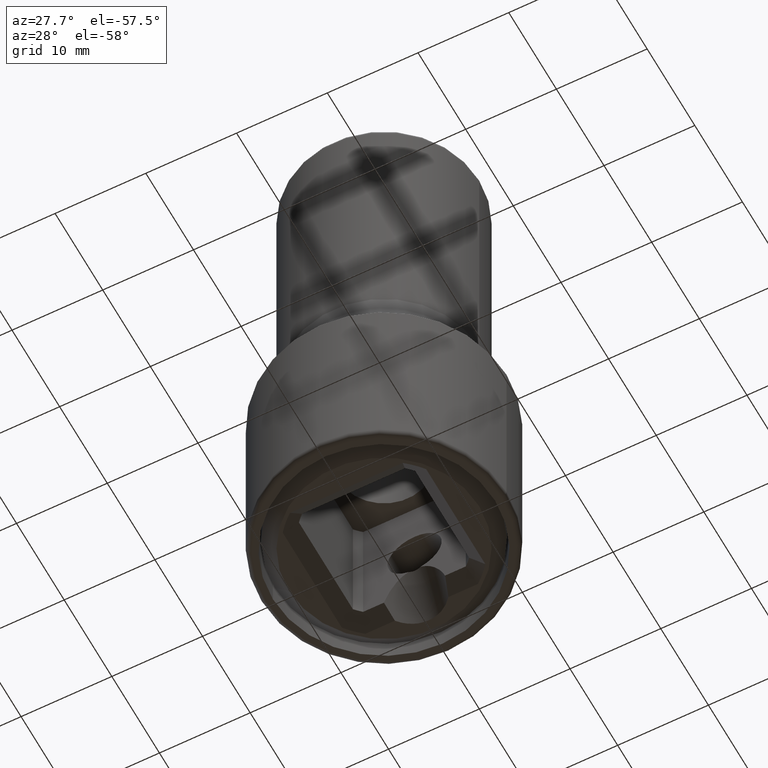
[diagram: clean part render]
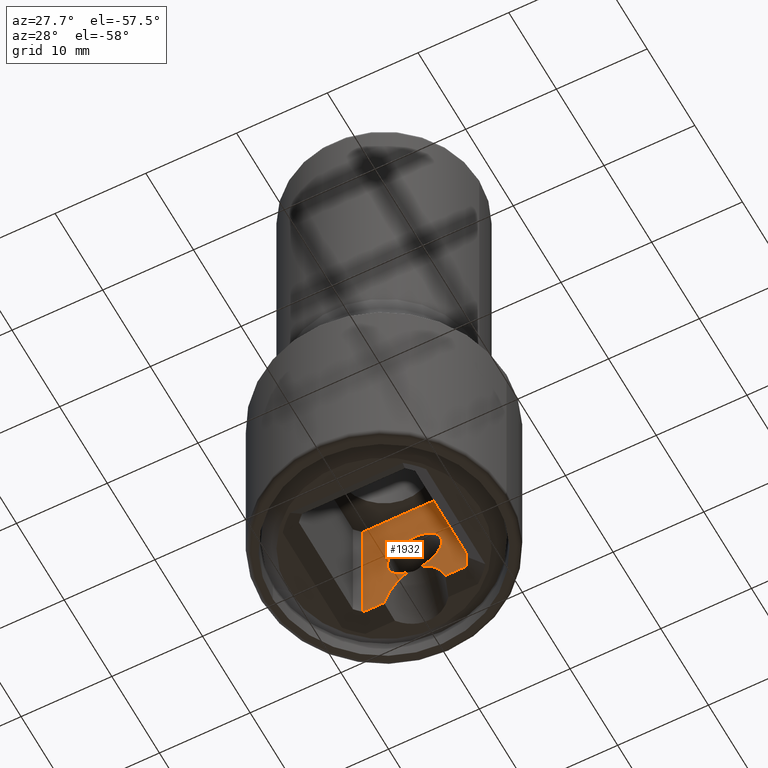
[diagram: same view with one face highlighted and labeled with its STEP entity id]
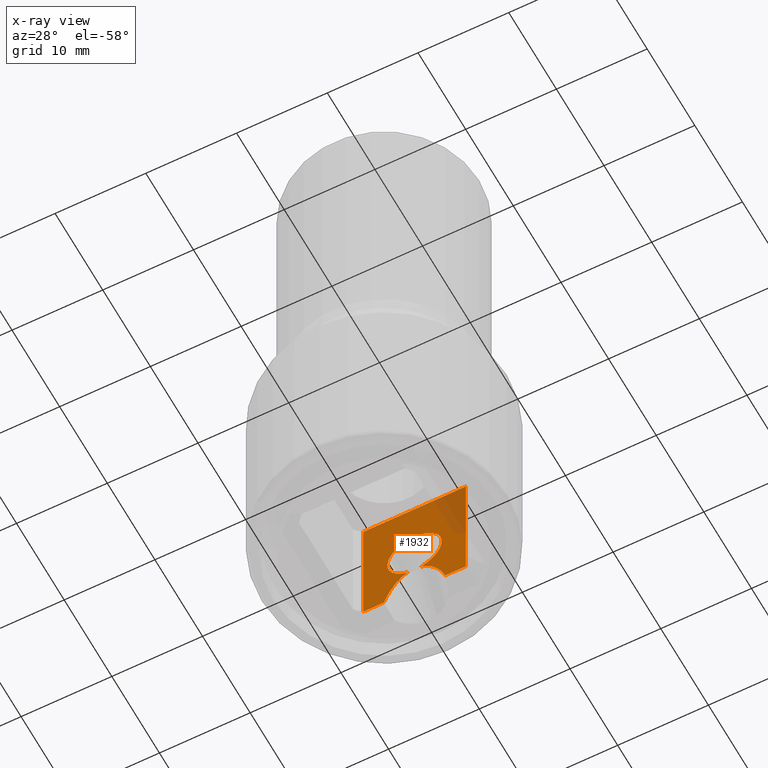
[diagram: x-ray of the same camera — body ghosted, the highlighted face saturated]
A machine part, auxiliary view. The second image highlights one B-rep face of the part: STEP entity #1932.
The next image is the same camera in x-ray: the body ghosted, the highlighted face saturated — about 16% of this face is hidden behind the body in this view.
In plain terms, the highlighted planar face has unit normal (0, 1, 0).
Its self-contained STEP definition (entity closure, byte-faithful):
#105=CARTESIAN_POINT('',(6.828016345722E-1,6.405E0,5.078736244735E0));
#106=CARTESIAN_POINT('',(1.073727708636E0,6.405E0,4.943285753681E0));
#107=CARTESIAN_POINT('',(1.692973821892E0,6.405E0,4.513738629968E0));
#108=CARTESIAN_POINT('',(2.638655239486E0,6.405E0,3.368964302522E0));
#109=CARTESIAN_POINT('',(3.120281286575E0,6.405E0,2.288292064284E0));
#110=CARTESIAN_POINT('',(3.371827992033E0,6.405E0,1.5E0));
#122=CARTESIAN_POINT('',(-3.371827992033E0,6.405E0,1.5E0));
#123=CARTESIAN_POINT('',(-3.120281286575E0,6.405E0,2.288292064284E0));
#124=CARTESIAN_POINT('',(-2.638655239486E0,6.405E0,3.368964302522E0));
#125=CARTESIAN_POINT('',(-1.692973821892E0,6.405E0,4.513738629968E0));
#126=CARTESIAN_POINT('',(-1.073727708636E0,6.405E0,4.943285753681E0));
#127=CARTESIAN_POINT('',(-6.828016345722E-1,6.405E0,5.078736244735E0));
#682=DIRECTION('',(1.E0,0.E0,0.E0));
#683=VECTOR('',#682,1.132757255549E1);
#684=CARTESIAN_POINT('',(-5.663786277747E0,6.405E0,1.6E1));
#685=LINE('',#684,#683);
#728=DIRECTION('',(7.952565808959E-13,1.974818775944E-12,1.E0));
#729=VECTOR('',#728,1.449999999997E1);
#730=CARTESIAN_POINT('',(5.663786277736E0,6.404999999971E0,1.500000000029E0));
#731=LINE('',#730,#729);
#838=CARTESIAN_POINT('',(3.371827992033E0,6.405E0,1.5E0));
#840=CARTESIAN_POINT('',(-3.371827992033E0,6.405E0,1.5E0));
#851=CARTESIAN_POINT('',(0.E0,6.405E0,8.E0));
#852=DIRECTION('',(0.E0,1.E0,0.E0));
#853=DIRECTION('',(-2.276005448574E-1,0.E0,-9.737545850884E-1));
#854=AXIS2_PLACEMENT_3D('',#851,#852,#853);
#856=DIRECTION('',(-9.999999999999E-1,-2.506639894632E-7,2.546262161210E-7));
#857=VECTOR('',#856,2.291958054426E0);
#858=CARTESIAN_POINT('',(-3.371827992033E0,6.405E0,1.5E0));
#859=LINE('',#858,#857);
#860=DIRECTION('',(-1.595096839170E-8,3.962147391996E-8,1.E0));
#861=VECTOR('',#860,1.449999941641E1);
#862=CARTESIAN_POINT('',(-5.663786046458E0,6.404999425489E0,1.500000583593E0));
#863=LINE('',#862,#861);
#864=DIRECTION('',(-1.E0,1.249362714398E-11,-1.269271526263E-11));
#865=VECTOR('',#864,2.291958285703E0);
#866=CARTESIAN_POINT('',(5.663786277736E0,6.404999999971E0,1.500000000029E0));
#867=LINE('',#866,#865);
#868=CARTESIAN_POINT('',(0.E0,6.405E0,8.E0));
#869=DIRECTION('',(0.E0,1.E0,0.E0));
#870=DIRECTION('',(0.E0,0.E0,1.E0));
#871=AXIS2_PLACEMENT_3D('',#868,#869,#870);
#905=CARTESIAN_POINT('',(5.663786277747E0,6.405E0,1.6E1));
#907=VERTEX_POINT('',#905);
#919=CARTESIAN_POINT('',(-5.663786277747E0,6.405E0,1.6E1));
#920=VERTEX_POINT('',#919);
#922=CARTESIAN_POINT('',(5.663786277747E0,6.405E0,1.5E0));
#924=VERTEX_POINT('',#922);
#951=CARTESIAN_POINT('',(-5.663786277747E0,6.405E0,1.5E0));
#952=VERTEX_POINT('',#951);
#954=VERTEX_POINT('',#838);
#955=VERTEX_POINT('',#840);
#981=CARTESIAN_POINT('',(-6.828016345722E-1,6.405E0,5.078736244735E0));
#982=CARTESIAN_POINT('',(0.E0,6.405E0,1.1E1));
#983=VERTEX_POINT('',#981);
#984=VERTEX_POINT('',#982);
#985=CARTESIAN_POINT('',(6.828016345722E-1,6.405E0,5.078736244735E0));
#986=VERTEX_POINT('',#985);
#1916=CARTESIAN_POINT('',(-5.663786277747E0,6.405E0,0.E0));
#1917=DIRECTION('',(0.E0,1.E0,0.E0));
#1918=DIRECTION('',(1.E0,0.E0,0.E0));
#1919=AXIS2_PLACEMENT_3D('',#1916,#1917,#1918);
#1920=PLANE('',#1919);
#1921=ORIENTED_EDGE('',*,*,#1142,.F.);
#1922=ORIENTED_EDGE('',*,*,#1123,.F.);
#1923=ORIENTED_EDGE('',*,*,#1911,.T.);
#1924=ORIENTED_EDGE('',*,*,#1872,.T.);
#1925=ORIENTED_EDGE('',*,*,#1673,.T.);
#1926=ORIENTED_EDGE('',*,*,#1702,.F.);
#1927=ORIENTED_EDGE('',*,*,#1896,.T.);
#1928=ORIENTED_EDGE('',*,*,#1116,.F.);
#1929=ORIENTED_EDGE('',*,*,#1223,.F.);
#1930=EDGE_LOOP('',(#1921,#1922,#1923,#1924,#1925,#1926,#1927,#1928,#1929));
#1931=FACE_OUTER_BOUND('',#1930,.F.);
#1932=ADVANCED_FACE('',(#1931),#1920,.F.);
#111=B_SPLINE_CURVE_WITH_KNOTS('',3,(#105,#106,#107,#108,#109,#110),
.UNSPECIFIED.,.F.,.F.,(4,1,1,4),(0.E0,2.5E-1,5.E-1,1.E0),.UNSPECIFIED.);
#128=B_SPLINE_CURVE_WITH_KNOTS('',3,(#122,#123,#124,#125,#126,#127),
.UNSPECIFIED.,.F.,.F.,(4,1,1,4),(0.E0,5.E-1,7.5E-1,1.E0),.UNSPECIFIED.);
#855=CIRCLE('',#854,3.E0);
#872=CIRCLE('',#871,3.E0);
#1116=EDGE_CURVE('',#986,#954,#111,.T.);
#1123=EDGE_CURVE('',#955,#983,#128,.T.);
#1142=EDGE_CURVE('',#983,#984,#855,.T.);
#1223=EDGE_CURVE('',#984,#986,#872,.T.);
#1673=EDGE_CURVE('',#920,#907,#685,.T.);
#1702=EDGE_CURVE('',#924,#907,#731,.T.);
#1872=EDGE_CURVE('',#952,#920,#863,.T.);
#1896=EDGE_CURVE('',#924,#954,#867,.T.);
#1911=EDGE_CURVE('',#955,#952,#859,.T.);